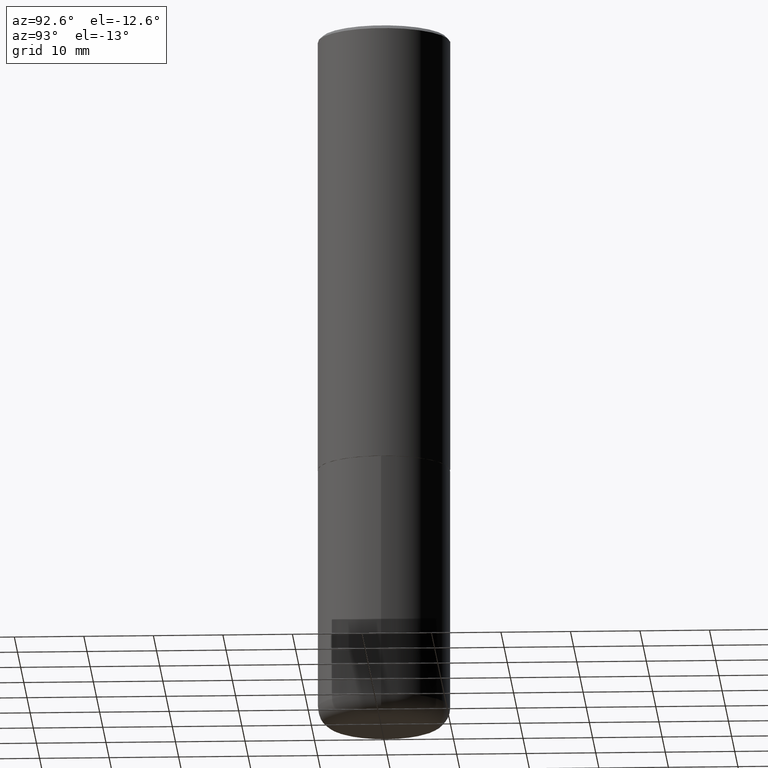
[diagram: clean part render]
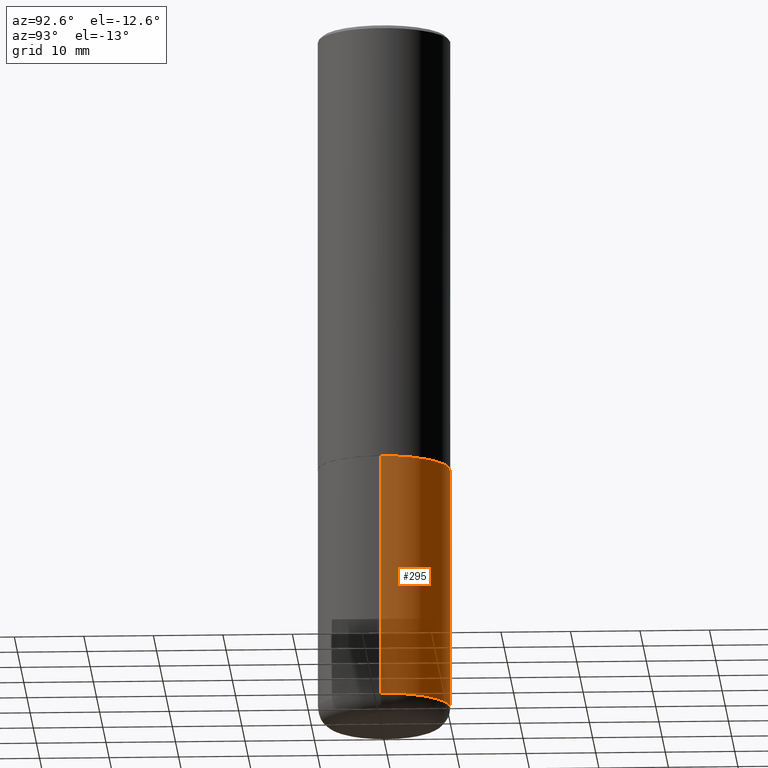
[diagram: same view with one face highlighted and labeled with its STEP entity id]
A machine part, auxiliary view. The second image highlights one B-rep face of the part: STEP entity #295.
In plain terms, the highlighted cylindrical surface (partial cylindrical patch) has radius 9.525 mm, axis along (-0, 0, 1).
Its self-contained STEP definition (entity closure, byte-faithful):
#2 = ORIENTED_EDGE ( 'NONE', *, *, #379, .T. ) ;
#6 = ORIENTED_EDGE ( 'NONE', *, *, #26, .F. ) ;
#9 = CARTESIAN_POINT ( 'NONE',  ( 6.113672015462840371E-29, -8.728703347107863365E-15, -2.499999999999999556 ) ) ;
#10 = AXIS2_PLACEMENT_3D ( 'NONE', #253, #302, #174 ) ;
#26 = EDGE_CURVE ( 'NONE', #58, #416, #60, .T. ) ;
#28 = ORIENTED_EDGE ( 'NONE', *, *, #124, .T. ) ;
#35 = EDGE_LOOP ( 'NONE', ( #2, #28, #6, #284 ) ) ;
#40 = DIRECTION ( 'NONE',  ( -2.445468806185136597E-29, 3.491481338843145583E-15, 1.000000000000000000 ) ) ;
#42 = LINE ( 'NONE', #231, #393 ) ;
#58 = VERTEX_POINT ( 'NONE', #230 ) ;
#60 = CIRCLE ( 'NONE', #384, 0.3750000000000000555 ) ;
#62 = AXIS2_PLACEMENT_3D ( 'NONE', #403, #142, #273 ) ;
#77 = LINE ( 'NONE', #336, #96 ) ;
#79 = FACE_OUTER_BOUND ( 'NONE', #35, .T. ) ;
#96 = VECTOR ( 'NONE', #203, 39.37007874015748143 ) ;
#107 = CYLINDRICAL_SURFACE ( 'NONE', #10, 0.3749999999999999445 ) ;
#116 = EDGE_CURVE ( 'NONE', #377, #58, #77, .T. ) ;
#124 = EDGE_CURVE ( 'NONE', #196, #416, #42, .T. ) ;
#142 = DIRECTION ( 'NONE',  ( -2.445468806185136597E-29, 3.491481338843145583E-15, 1.000000000000000000 ) ) ;
#174 = DIRECTION ( 'NONE',  ( 1.000000000000000000, -6.982962677686266711E-15, 4.876176775795935793E-29 ) ) ;
#196 = VERTEX_POINT ( 'NONE', #414 ) ;
#203 = DIRECTION ( 'NONE',  ( -2.445468806185136877E-29, 3.491481338843145188E-15, 1.000000000000000000 ) ) ;
#211 = CARTESIAN_POINT ( 'NONE',  ( 0.3749999999999999445, -1.614810119214953752E-14, -3.875000000000000000 ) ) ;
#228 = DIRECTION ( 'NONE',  ( 1.000000000000000000, -6.982962677686264344E-15, 0.000000000000000000 ) ) ;
#229 = CARTESIAN_POINT ( 'NONE',  ( -0.3750000000000000555, -8.464561508462150527E-15, -2.499999999999999556 ) ) ;
#230 = CARTESIAN_POINT ( 'NONE',  ( 0.3750000000000000555, -1.134731435124021180E-14, -2.499999999999999556 ) ) ;
#231 = CARTESIAN_POINT ( 'NONE',  ( -0.3749999999999999445, 2.664535259100375303E-15, -1.844600658845589318E-29 ) ) ;
#252 = CIRCLE ( 'NONE', #62, 0.3749999999999999445 ) ;
#253 = CARTESIAN_POINT ( 'NONE',  ( 0.000000000000000000, 0.000000000000000000, 0.000000000000000000 ) ) ;
#273 = DIRECTION ( 'NONE',  ( 1.000000000000000000, -6.982962677686263555E-15, 0.000000000000000000 ) ) ;
#284 = ORIENTED_EDGE ( 'NONE', *, *, #116, .F. ) ;
#295 = ADVANCED_FACE ( 'NONE', ( #79 ), #107, .T. ) ;
#302 = DIRECTION ( 'NONE',  ( -2.445468806185136597E-29, 3.491481338843145583E-15, 1.000000000000000000 ) ) ;
#336 = CARTESIAN_POINT ( 'NONE',  ( 0.3749999999999999445, -2.618611004132349622E-15, 1.828566290923475642E-29 ) ) ;
#365 = DIRECTION ( 'NONE',  ( -2.445468806185136877E-29, 3.491481338843145188E-15, 1.000000000000000000 ) ) ;
#377 = VERTEX_POINT ( 'NONE', #211 ) ;
#379 = EDGE_CURVE ( 'NONE', #377, #196, #252, .T. ) ;
#384 = AXIS2_PLACEMENT_3D ( 'NONE', #9, #40, #228 ) ;
#393 = VECTOR ( 'NONE', #365, 39.37007874015748143 ) ;
#403 = CARTESIAN_POINT ( 'NONE',  ( 9.476191623967404313E-29, -1.352949018801718908E-14, -3.875000000000000000 ) ) ;
#414 = CARTESIAN_POINT ( 'NONE',  ( -0.3749999999999999445, -1.086495492891681496E-14, -3.875000000000000000 ) ) ;
#416 = VERTEX_POINT ( 'NONE', #229 ) ;